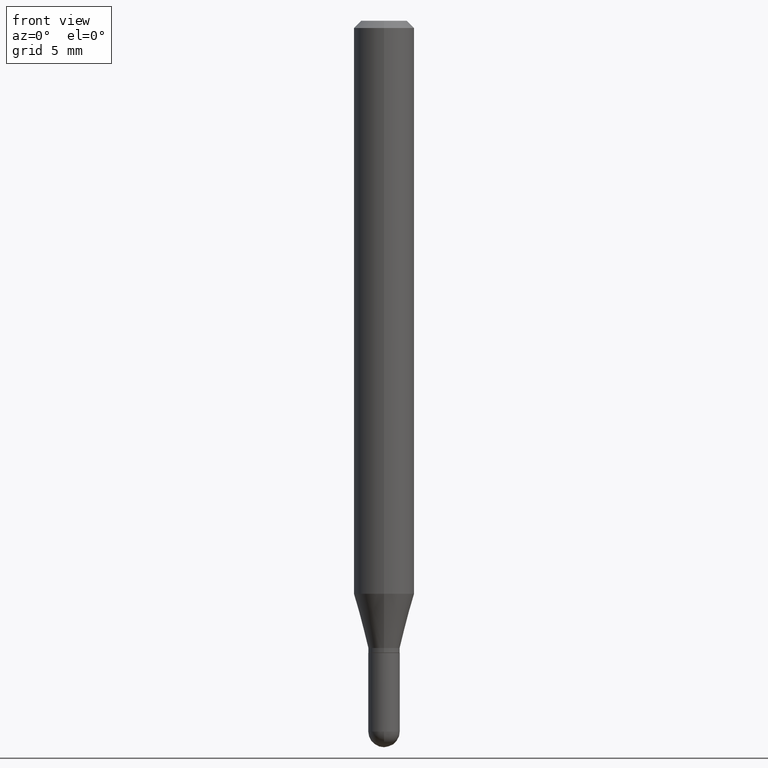
[diagram: clean part render]
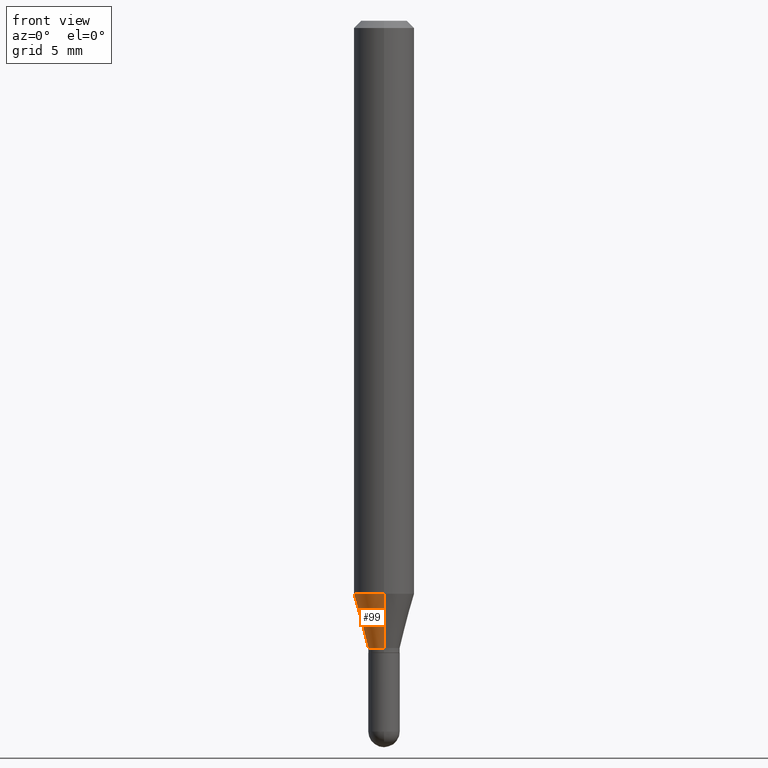
[diagram: same view with one face highlighted and labeled with its STEP entity id]
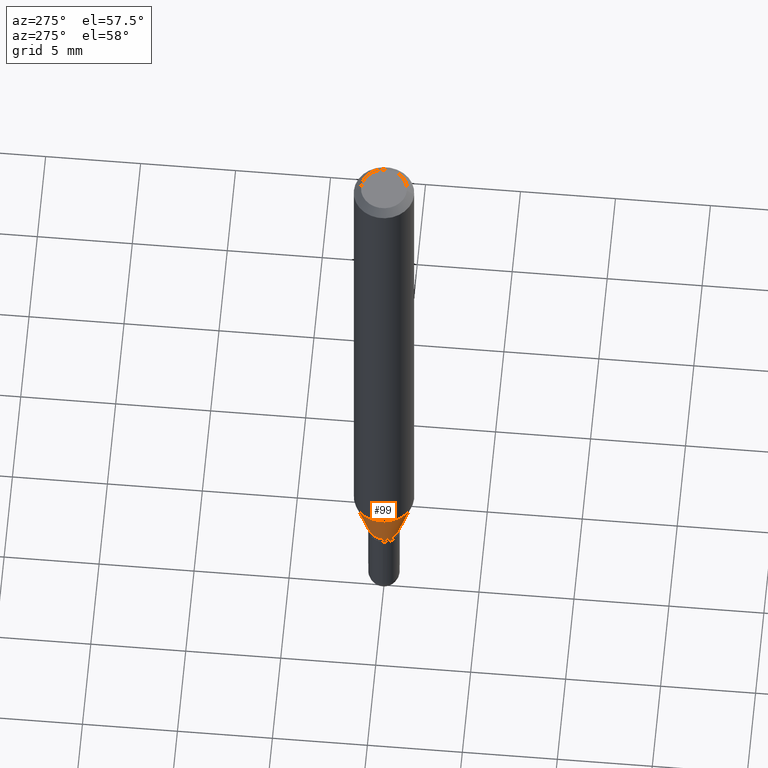
[diagram: same view with one face highlighted and labeled with its STEP entity id]
A machine part, front view. The second image highlights one B-rep face of the part: STEP entity #99.
A second angle (auxiliary view) of the same face is appended — the face is thin or edge-on in the first view.
In plain terms, the highlighted conical surface has half-angle 15 deg.
Its self-contained STEP definition (entity closure, byte-faithful):
#1 = CARTESIAN_POINT ( 'NONE',  ( -2.269462870247733265E-16, -0.03250000000000471262, -1.295000000000000151 ) ) ;
#7 = DIRECTION ( 'NONE',  ( -2.445483904847070703E-29, 3.491459716699893676E-15, 1.000000000000000000 ) ) ;
#39 = DIRECTION ( 'NONE',  ( -2.445483904847070703E-29, 3.491459716699893676E-15, 1.000000000000000000 ) ) ;
#40 = CARTESIAN_POINT ( 'NONE',  ( 4.440892098500912124E-16, 0.06249999999999582972, -1.183038475772935527 ) ) ;
#44 = CIRCLE ( 'NONE', #482, 0.03250000000000018846 ) ;
#57 = ORIENTED_EDGE ( 'NONE', *, *, #420, .F. ) ;
#60 = VECTOR ( 'NONE', #479, 39.37007874015748143 ) ;
#69 = VERTEX_POINT ( 'NONE', #40 ) ;
#70 = LINE ( 'NONE', #362, #60 ) ;
#87 = VERTEX_POINT ( 'NONE', #504 ) ;
#99 = ADVANCED_FACE ( 'NONE', ( #393 ), #105, .T. ) ;
#105 = CONICAL_SURFACE ( 'NONE', #115, 0.03250000000000018846, 0.2617993877991506846 ) ;
#114 = CARTESIAN_POINT ( 'NONE',  ( 3.375077994860785550E-16, 0.03249999999999567124, -1.295000000000000151 ) ) ;
#115 = AXIS2_PLACEMENT_3D ( 'NONE', #435, #39, #156 ) ;
#123 = DIRECTION ( 'NONE',  ( -6.982962677686266711E-15, -1.000000000000000000, 0.000000000000000000 ) ) ;
#130 = DIRECTION ( 'NONE',  ( -6.982962677686265922E-15, -1.000000000000000000, 4.370956789862821150E-15 ) ) ;
#156 = DIRECTION ( 'NONE',  ( -6.982962677686266711E-15, -1.000000000000000000, 0.000000000000000000 ) ) ;
#185 = CARTESIAN_POINT ( 'NONE',  ( 2.309263891220655525E-16, 0.03249999999999567124, -1.295000000000000151 ) ) ;
#192 = CARTESIAN_POINT ( 'NONE',  ( 3.166901656776957032E-29, -4.521440333126363352E-15, -1.295000000000000151 ) ) ;
#208 = CIRCLE ( 'NONE', #373, 0.06250000000000000000 ) ;
#219 = VECTOR ( 'NONE', #350, 39.37007874015748143 ) ;
#245 = ORIENTED_EDGE ( 'NONE', *, *, #330, .T. ) ;
#252 = ORIENTED_EDGE ( 'NONE', *, *, #459, .F. ) ;
#292 = LINE ( 'NONE', #185, #219 ) ;
#306 = EDGE_CURVE ( 'NONE', #424, #87, #70, .T. ) ;
#330 = EDGE_CURVE ( 'NONE', #341, #424, #44, .T. ) ;
#341 = VERTEX_POINT ( 'NONE', #114 ) ;
#350 = DIRECTION ( 'NONE',  ( 1.839019923739603076E-15, 0.2588190451025253469, 0.9659258262890670910 ) ) ;
#352 = DIRECTION ( 'NONE',  ( -2.445483904847070703E-29, 3.491459716699893676E-15, 1.000000000000000000 ) ) ;
#362 = CARTESIAN_POINT ( 'NONE',  ( -2.269462870247733265E-16, -0.03250000000000471262, -1.295000000000000151 ) ) ;
#366 = CARTESIAN_POINT ( 'NONE',  ( 2.893101551317524200E-29, -4.130531181467246054E-15, -1.183038475772935305 ) ) ;
#373 = AXIS2_PLACEMENT_3D ( 'NONE', #366, #7, #130 ) ;
#393 = FACE_OUTER_BOUND ( 'NONE', #434, .T. ) ;
#420 = EDGE_CURVE ( 'NONE', #341, #69, #292, .T. ) ;
#424 = VERTEX_POINT ( 'NONE', #1 ) ;
#427 = ORIENTED_EDGE ( 'NONE', *, *, #306, .T. ) ;
#434 = EDGE_LOOP ( 'NONE', ( #57, #245, #427, #252 ) ) ;
#435 = CARTESIAN_POINT ( 'NONE',  ( 3.166901656776957032E-29, -4.521440333126363352E-15, -1.295000000000000151 ) ) ;
#459 = EDGE_CURVE ( 'NONE', #69, #87, #208, .T. ) ;
#479 = DIRECTION ( 'NONE',  ( -1.807323732225332900E-15, -0.2588190451025185745, 0.9659258262890689783 ) ) ;
#482 = AXIS2_PLACEMENT_3D ( 'NONE', #192, #352, #123 ) ;
#504 = CARTESIAN_POINT ( 'NONE',  ( -4.364351673553628760E-16, -0.06250000000000416334, -1.183038475772934861 ) ) ;